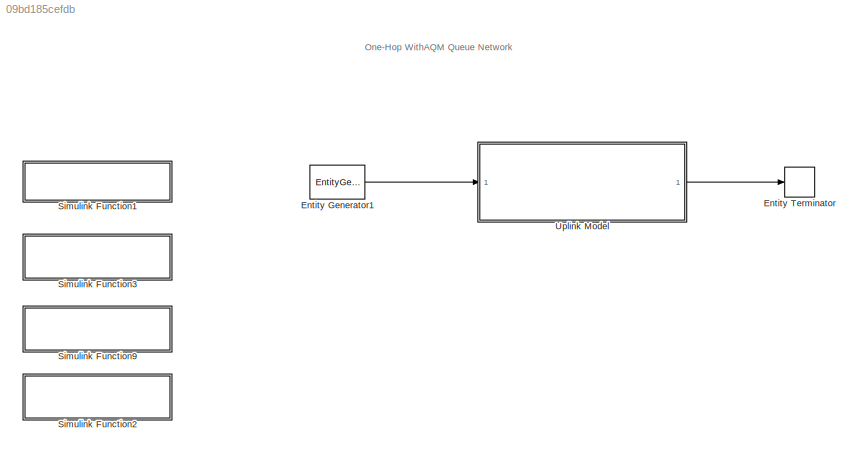
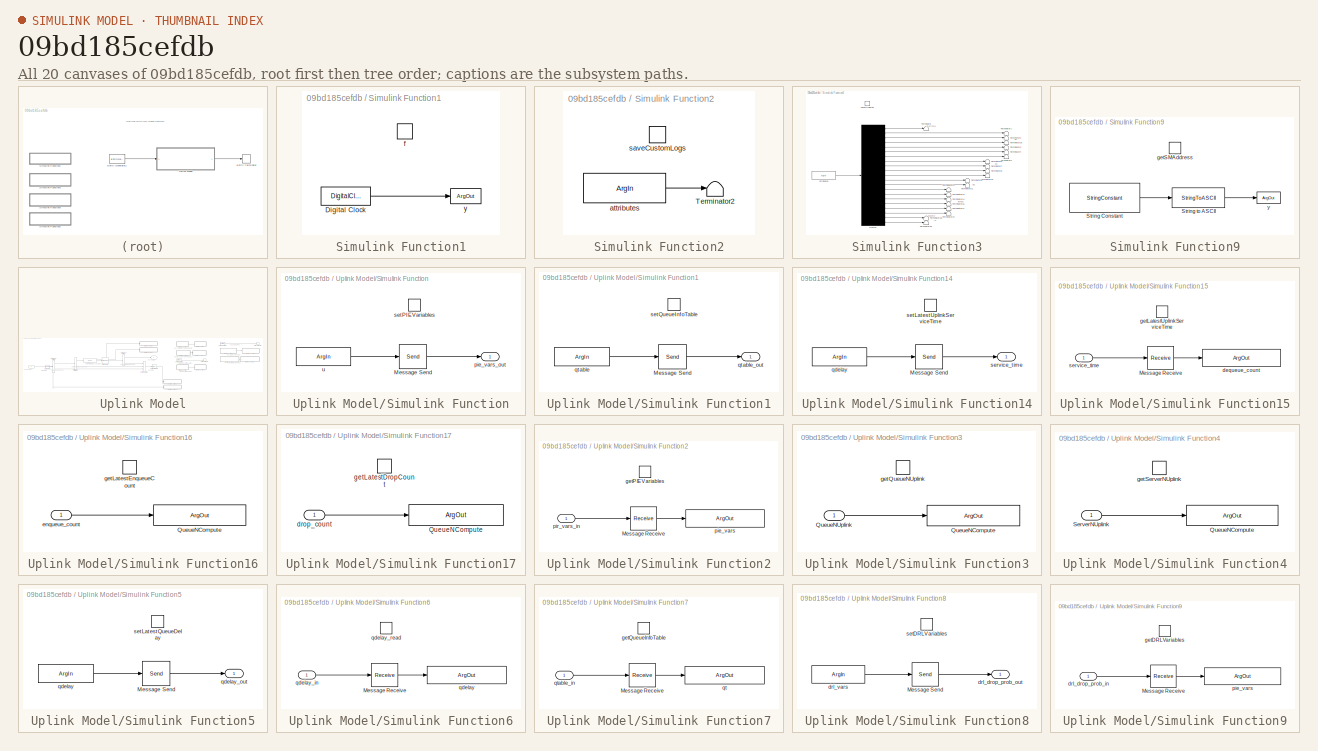
[diagram: thumbnail index - all 20 canvases of the model, root first then tree order]
MODEL slx_09bd185cefdb
KIND model
CONFIG AbsTol = auto
CONFIG EnableMultiTasking = on
CONFIG FixedStep = auto
CONFIG InitFcn = t = getCurrentTask();\nif ~isempty(t) \n    task_id = t.ID;\nelse\n    task_id = 1;\nend
CONFIG MaxStep = auto
CONFIG MinStep = auto
CONFIG RelTol = 1e-3
CONFIG SampleTimeConstraint = Unconstrained
CONFIG SolverName = VariableStepAuto
CONFIG StartTime = 0.0
CONFIG StopTime = 100
BLOCK [EntityGenerator] Entity Generator1
  AttributeInitialValue = inf|-1|-1|-1|-1|-1|-1|-1|-1|-1|-1|-1|-1|inf|inf|inf|inf|inf|inf|inf|1|0
  AttributeName = starttime|queuen_uplink_bu|servern_uplink_bu|queuen_compute_bu|servern_compute_bu|queuen_downlink_bu|servern_downlink_bu|queuen_compute_bc|servern_compute_bc|queuen_downlink_bc|servern_downlink_bc|queuen_downlink_bd|servern_downlink_bd|queuetime_uplink|servicetime_uplink|queuetime_compute|servicetime_compute|queuetime_downlink|servicetime_downlink|endtime|drop_switch_port|service_dt
  EntityType = Structured
  EntityTypeName = Entity
  GenerateAction = entity.starttime = getCurrentTime();\n\nentity.queuen_uplink_bu = getQueueNUplink();\nentity.servern_uplink_bu = getServerNUplink();
  IntergenerationTimeAction = dt = getArrivalTime(sim_vars(1),sim_vars(2),sim_vars(12));
  OutputPortMap = o3
  OutputPortMessageModes = m
  Ports = [0, 1]
  TimeSource = MATLAB action
BLOCK [EntityTerminator] Entity Terminator
  EntryAction = entity.endtime = getCurrentTime();\n\nsaveAttributes([entity.starttime;               ...\n                entity.queuen_uplink_bu;        ...\n                entity.servern_uplink_bu;       ...\n                entity.queuen_compute_bu;       ...\n                entity.servern_compute_bu;      ...\n                entity.queuen_downlink_bu;      ...\n                entity.servern_downlink_bu;     ...\n...<+707ch>
  InputPortMap = u0
  InputPortMessageModes = m
  Ports = [1]
BLOCK [SubSystem] Simulink Function1
  Ports = [0, 0, 0, 1]
  RequestExecContextInheritance = off
  TreatAsAtomicUnit = on
BLOCK [DigitalClock] Simulink Function1/Digital Clock
  SampleTime = -1
BLOCK [TriggerPort] Simulink Function1/f
  FunctionName = getCurrentTime
  IsSimulinkFunction = on
  Ports = []
  StatesWhenEnabling = held
  TriggerType = function-call
  VariantControl = (inherit)
BLOCK [ArgOut] Simulink Function1/y
  ArgumentName = y
  DisableCoverage = on
BLOCK [SubSystem] Simulink Function2
  Ports = [0, 0, 0, 1]
  RequestExecContextInheritance = off
  TreatAsAtomicUnit = on
BLOCK [Terminator] Simulink Function2/Terminator2
BLOCK [ArgIn] Simulink Function2/attributes
  ArgumentName = attributes
  DisableCoverage = on
  PortDimensions = 7
BLOCK [TriggerPort] Simulink Function2/saveCustomLogs
  FunctionName = saveCustomLogs
  IsSimulinkFunction = on
  Ports = []
  StatesWhenEnabling = held
  TriggerType = function-call
  VariantControl = (inherit)
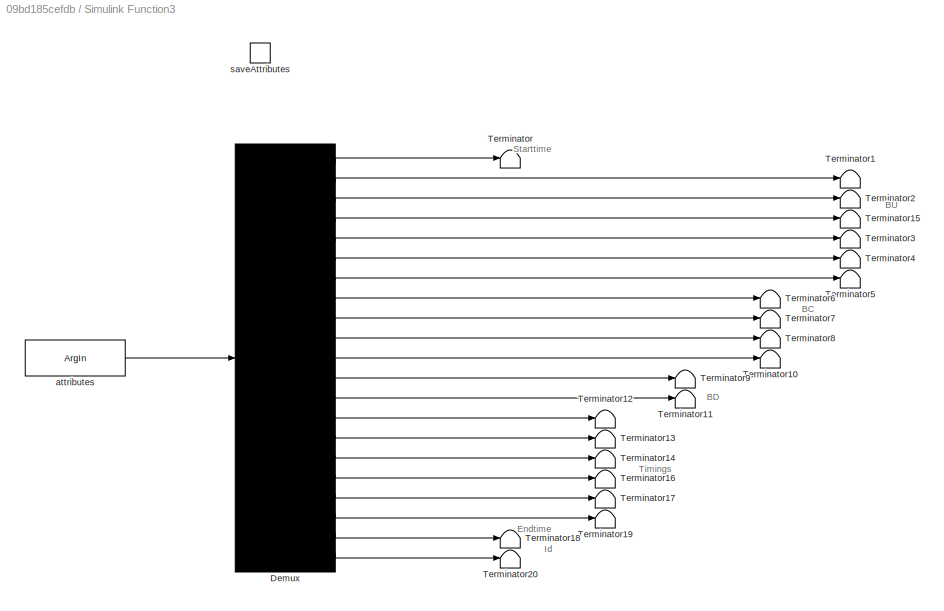
BLOCK [SubSystem] Simulink Function3
  Ports = [0, 0, 0, 1]
  RequestExecContextInheritance = off
  TreatAsAtomicUnit = on
BLOCK [Demux] Simulink Function3/Demux
  DisplayOption = none
  Outputs = 21
  Ports = [1, 21]
BLOCK [Terminator] Simulink Function3/Terminator
BLOCK [Terminator] Simulink Function3/Terminator1
BLOCK [Terminator] Simulink Function3/Terminator10
BLOCK [Terminator] Simulink Function3/Terminator11
BLOCK [Terminator] Simulink Function3/Terminator12
BLOCK [Terminator] Simulink Function3/Terminator13
BLOCK [Terminator] Simulink Function3/Terminator14
BLOCK [Terminator] Simulink Function3/Terminator15
BLOCK [Terminator] Simulink Function3/Terminator16
BLOCK [Terminator] Simulink Function3/Terminator17
BLOCK [Terminator] Simulink Function3/Terminator18
BLOCK [Terminator] Simulink Function3/Terminator19
BLOCK [Terminator] Simulink Function3/Terminator2
BLOCK [Terminator] Simulink Function3/Terminator20
BLOCK [Terminator] Simulink Function3/Terminator3
BLOCK [Terminator] Simulink Function3/Terminator4
BLOCK [Terminator] Simulink Function3/Terminator5
BLOCK [Terminator] Simulink Function3/Terminator6
BLOCK [Terminator] Simulink Function3/Terminator7
BLOCK [Terminator] Simulink Function3/Terminator8
BLOCK [Terminator] Simulink Function3/Terminator9
BLOCK [ArgIn] Simulink Function3/attributes
  ArgumentName = attributes
  DisableCoverage = on
  PortDimensions = 21
BLOCK [TriggerPort] Simulink Function3/saveAttributes
  FunctionName = saveAttributes
  IsSimulinkFunction = on
  Ports = []
  StatesWhenEnabling = held
  TriggerType = function-call
  VariantControl = (inherit)
BLOCK [SubSystem] Simulink Function9
  Ports = [0, 0, 0, 1]
  RequestExecContextInheritance = off
  TreatAsAtomicUnit = on
BLOCK [StringConstant] Simulink Function9/String Constant
  String = sm_address
BLOCK [StringToASCII] Simulink Function9/String to ASCII
  OutputVectorSize = 500
BLOCK [TriggerPort] Simulink Function9/getSMAddress
  FunctionName = getSMAddress
  IsSimulinkFunction = on
  Ports = []
  StatesWhenEnabling = held
  TriggerType = function-call
  VariantControl = (inherit)
BLOCK [ArgOut] Simulink Function9/y
  ArgumentName = y
  DisableCoverage = on
  OutDataTypeStr = uint8
  PortDimensions = 500
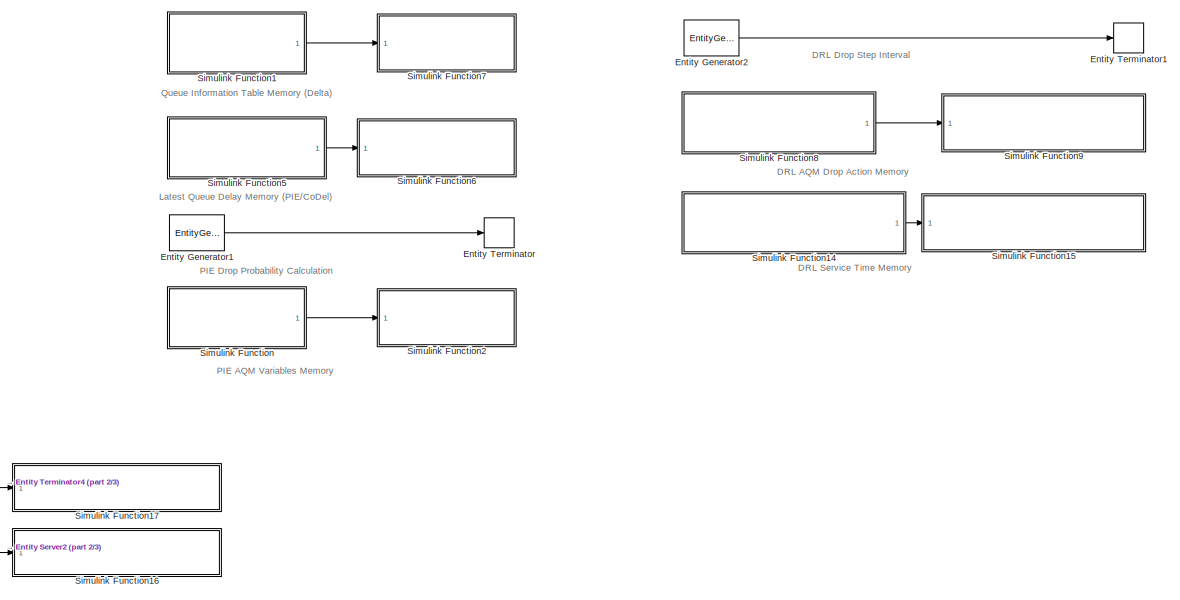
[diagram: Uplink Model - part 1/3, right side, full height]
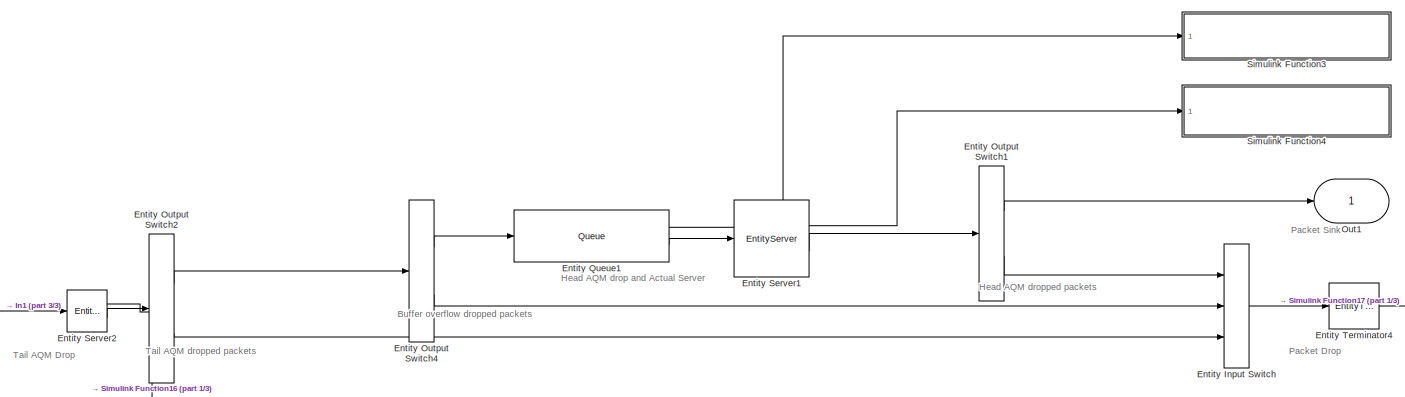
[diagram: Uplink Model - part 2/3, middle left region]
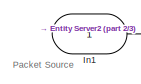
[diagram: Uplink Model - part 3/3, middle left region]
BLOCK [SubSystem] Uplink Model
  Ports = [1, 1]
  RequestExecContextInheritance = off
BLOCK [EntityGenerator] Uplink Model/Entity Generator1
  EntityType = Structured
  EntityTypeName = PIE_bell
  GenerateEntityAtSimulationStart = off
  IntergenerationTimeAction = if (aqm_params(1) == 1)\n    T_UPDATE = aqm_params(6);\n    dt = T_UPDATE;\nelse\n    dt = inf;
  OutputPortMap = o3
  OutputPortMessageModes = m
  Ports = [0, 1]
  TimeSource = MATLAB action
BLOCK [EntityGenerator] Uplink Model/Entity Generator2
  AttributeInitialValue = -1|0|0
  AttributeName = reward|delay_reward|enqueue_reward
  EntityType = Structured
  EntityTypeName = DRL_bell
  GenerateEntityAtSimulationStart = off
  IntergenerationTimeAction = if (aqm_params(1) == 4)\n    T_UPDATE = aqm_params(15);\n    dt = T_UPDATE;\nelse\n    dt = inf;
  OutputPortMap = o3
  OutputPortMessageModes = m
  Ports = [0, 1]
  TimeSource = MATLAB action
BLOCK [EntityInputSwitch] Uplink Model/Entity Input Switch
  InputPortMap = u1,u2,u3
  InputPortMessageModes = m,m,m
  NumberInputPorts = 3
  OutputPortMap = o0
  OutputPortMessageModes = m
  Ports = [3, 1]
BLOCK [EntityOutputSwitch] Uplink Model/Entity Output Switch1
  InputPortMap = u1
  InputPortMessageModes = m
  OutputPortMap = o0,o1
  OutputPortMessageModes = m,m
  Ports = [1, 2]
  SwitchAttributeName = drop_switch_port
  SwitchingCriterion = From attribute
BLOCK [EntityOutputSwitch] Uplink Model/Entity Output Switch2
  InputPortMap = u1
  InputPortMessageModes = m
  OutputPortMap = o0,o1
  OutputPortMessageModes = m,m
  Ports = [1, 2]
  SwitchAttributeName = drop_switch_port
  SwitchingCriterion = From attribute
BLOCK [EntityOutputSwitch] Uplink Model/Entity Output Switch4
  InputPortMap = u1
  InputPortMessageModes = m
  OutputPortMap = o0,o1
  OutputPortMessageModes = m,m
  Ports = [1, 2]
  SwitchAttributeName = drop_at_source
BLOCK [Queue] Uplink Model/Entity Queue1
  Capacity = sim_vars(9)
  EntryAction = %%%%%%%%%%%%%%%%%%%%%%%%%%%%%%%%%%%%%%%%%%%%%%%%%%%%%%%%\n%% Delta: Update Queue Information Table %%%%%%%%%%%%%%%\n\nif aqm_params(1) == 3\n\n    qtable = getQueueInfoTable();\n    QTABLE_SIZE = aqm_params(11);\n    TARGET_DELAY = aqm_params(12);\n    now = getCurrentTime();\n    nrow = sum(qtable(:,3)==1);\n    if nrow >= (QTABLE_SIZE-1)\n        error('Queue table is full')\n    end\n\n    % First, update th...<+488ch>
  InputPortMap = u0
  InputPortMessageModes = m
  NumberEntitiesInBlock = on
  OutputPortMap = o1,o5
  OutputPortMessageModes = n,m
  Ports = [1, 2]
BLOCK [EntityServer] Uplink Model/Entity Server1
  Capacity = 1
  EntryAction = %%%%%%%%%%%%%%%%%%%%%%%%%%%%%%%%%%%%%%%%%%%%%%%%%%%%%%%%%%%%%%\n%% Non-AQM Stuff %%%%%%%%%%%%%%%%%%%%%%%%%%%%%%%%%%%%%%%%%%%%%\n\n% update packet's queue timestamp\nentity.queuetime_uplink = getCurrentTime();\n% define the packet drop variable\ndrop_the_packet = 0;\n\n%%%%%%%%%%%%%%%%%%%%%%%%%%%%%%%%%%%%%%%%%%%%%%%%%%%%%%%%%%%%%%\n%% Delta-AQM: (1) Update Queue Table Latency Budgets %%%%%%%%%\nqt = zeros(aq...<+3132ch>
  InputPortMap = u2
  InputPortMessageModes = m
  NumberEntitiesInBlock = on
  OutputPortMap = o1,o9
  OutputPortMessageModes = n,m
  Ports = [1, 2]
  ServiceCompleteAction = %% update service time\n% if supposed to be dropped\nif (entity.drop_switch_port == 2)\n    entity.servicetime_uplink = inf;\nelse\n    entity.servicetime_uplink = getCurrentTime();\nend
  ServiceTimeAction = % if supposed to be dropped\nif (entity.drop_switch_port == 2) \n    dt = 0;\nelse\n    % entity.service_dt is set in event actions entry\n    dt = entity.service_dt;\nend
  ServiceTimeSource = MATLAB action
BLOCK [EntityServer] Uplink Model/Entity Server2
  Capacity = 1
  EntryAction = %%%%%%%%%%%%%%%%%%%%%%%%%%%%%%%%%%%%%%%%%%%%%%%%\n%% PIE AQM Dropping Process %%%%%%%%%%%%%%%%%%%%\n\nif aqm_params(1)==1 % if PIE is enabled\n    \n    % pie implementation\n    QDELAY_REF = aqm_params(4);\n    MEAN_PKTSIZE = aqm_params(5);\n\n    pie_vars = getPIEVariables();\n    drop_prob = pie_vars(1);\n    qdelay_old = pie_vars(2);\n\n    queue_length = getQueueNUplink();\n    server_length = getServerNUp...<+280ch>
  InputPortMap = u2
  InputPortMessageModes = m
  NumberEntitiesDeparted = on
  OutputPortMap = o0,o9
  OutputPortMessageModes = n,m
  Ports = [1, 2]
  ServiceTimeAction = dt = 0;
  ServiceTimeSource = MATLAB action
BLOCK [EntityTerminator] Uplink Model/Entity Terminator
  EntryAction = if (aqm_params(1) == 1)\n    \n    QDELAY_REF = aqm_params(4);\n    MEAN_PKTSIZE = aqm_params(5);\n    T_UPDATE = aqm_params(6);\n    ALPHA = aqm_params(7);\n    BETA = aqm_params(8);\n    \n    latest_queue_delay = getLatestQueueDelay();\n    \n    [drop_prob,qdelay_old] = updateDropProbPIEInterval(latest_queue_delay,ALPHA,BETA,QDELAY_REF);\n    setPIEVariables([drop_prob;qdelay_old]);\n    \nend
  InputPortMap = u0
  InputPortMessageModes = m
  Ports = [1]
BLOCK [EntityTerminator] Uplink Model/Entity Terminator1
  EntryAction = persistent enqueue_count;\npersistent drop_count;\npersistent queue_length;\n\nif (isempty(enqueue_count) || isempty(drop_count) || isempty(queue_length))\n    enqueue_count = getLatestEnqueueCount();\n    drop_count = getLatestDropCount();\n    queue_length = getQueueNUplink();\nend\n\nif (aqm_params(1) == 4)\n    \n    DELAY_REF = aqm_params(13);\n    DELTA = aqm_params(14);\n    T_INTERVAL = aqm_params(15);\n...<+1998ch>
  InputPortMap = u0
  InputPortMessageModes = m
  Ports = [1]
BLOCK [EntityTerminator] Uplink Model/Entity Terminator4
  EntryAction = saveAttributes([entity.starttime;               ...\n                entity.queuen_uplink_bu;        ...\n                entity.servern_uplink_bu;       ...\n                entity.queuen_compute_bu;       ...\n                entity.servern_compute_bu;      ...\n                entity.queuen_downlink_bu;      ...\n                entity.servern_downlink_bu;     ...\n                entity.queuen_comput...<+671ch>
  InputPortMap = u0
  InputPortMessageModes = m
  NumberEntitiesArrived = on
  OutputPortMap = o0
  Ports = [1, 1]
BLOCK [Inport] Uplink Model/In1
BLOCK [Outport] Uplink Model/Out1
BLOCK [SubSystem] Uplink Model/Simulink Function
  Ports = [0, 1, 0, 1]
  RequestExecContextInheritance = off
  TreatAsAtomicUnit = on
BLOCK [Send] Uplink Model/Simulink Function/Message Send
  InputPortMap = u1
  OutputPortMessageModes = m
  Ports = [1, 1]
BLOCK [Outport] Uplink Model/Simulink Function/pie_vars_out
  InitialOutput = [0,0]
  VectorParamsAs1DForOutWhenUnconnected = off
BLOCK [TriggerPort] Uplink Model/Simulink Function/setPIEVariables
  FunctionName = setPIEVariables
  FunctionVisibility = scoped
  IsSimulinkFunction = on
  Ports = []
  StatesWhenEnabling = held
  TriggerType = function-call
  VariantControl = (inherit)
BLOCK [ArgIn] Uplink Model/Simulink Function/u
  ArgumentName = pie_vars
  DisableCoverage = on
  PortDimensions = 2
BLOCK [SubSystem] Uplink Model/Simulink Function1
  Ports = [0, 1, 0, 1]
  RequestExecContextInheritance = off
  TreatAsAtomicUnit = on
BLOCK [Send] Uplink Model/Simulink Function1/Message Send
  InputPortMap = u1
  OutputPortMessageModes = m
  Ports = [1, 1]
BLOCK [ArgIn] Uplink Model/Simulink Function1/qtable
  ArgumentName = new_qt
  DisableCoverage = on
  PortDimensions = [aqm_params(11),3]
BLOCK [Outport] Uplink Model/Simulink Function1/qtable_out
  InitialOutput = zeros(aqm_params(11),3)
  VectorParamsAs1DForOutWhenUnconnected = off
BLOCK [TriggerPort] Uplink Model/Simulink Function1/setQueueInfoTable
  FunctionName = setQueueInfoTable
  FunctionVisibility = scoped
  IsSimulinkFunction = on
  Ports = []
  StatesWhenEnabling = held
  TriggerType = function-call
  VariantControl = (inherit)
BLOCK [SubSystem] Uplink Model/Simulink Function14
  Ports = [0, 1, 0, 1]
  RequestExecContextInheritance = off
  TreatAsAtomicUnit = on
BLOCK [Send] Uplink Model/Simulink Function14/Message Send
  InputPortMap = u1
  OutputPortMessageModes = m
  Ports = [1, 1]
BLOCK [ArgIn] Uplink Model/Simulink Function14/qdelay
  ArgumentName = service_time
  DisableCoverage = on
BLOCK [Outport] Uplink Model/Simulink Function14/service_time
  InitialOutput = [0]
  VectorParamsAs1DForOutWhenUnconnected = off
BLOCK [TriggerPort] Uplink Model/Simulink Function14/setLatestUplinkServiceTime
  FunctionName = setLatestUplinkServiceTime
  FunctionVisibility = scoped
  IsSimulinkFunction = on
  Ports = []
  StatesWhenEnabling = held
  TriggerType = function-call
  VariantControl = (inherit)
BLOCK [SubSystem] Uplink Model/Simulink Function15
  Ports = [1, 0, 0, 1]
  RequestExecContextInheritance = off
  TreatAsAtomicUnit = on
BLOCK [Receive] Uplink Model/Simulink Function15/Message Receive
  InitialValue = [0]
  InputPortMap = u0
  InputPortMessageModes = m
  OutputPortMap = o1
  Ports = [1, 1]
  QueueLength = 1
  QueueOverwriting = on
BLOCK [ArgOut] Uplink Model/Simulink Function15/dequeue_count
  ArgumentName = service_time
  DisableCoverage = on
BLOCK [TriggerPort] Uplink Model/Simulink Function15/getLatestUplinkServiceTime
  FunctionName = getLatestUplinkServiceTime
  FunctionVisibility = scoped
  IsSimulinkFunction = on
  Ports = []
  StatesWhenEnabling = held
  TriggerType = function-call
  VariantControl = (inherit)
BLOCK [Inport] Uplink Model/Simulink Function15/service_time
BLOCK [SubSystem] Uplink Model/Simulink Function16
  Ports = [1, 0, 0, 1]
  RequestExecContextInheritance = off
  TreatAsAtomicUnit = on
BLOCK [ArgOut] Uplink Model/Simulink Function16/QueueNCompute
  ArgumentName = enqueue_count
  DisableCoverage = on
BLOCK [Inport] Uplink Model/Simulink Function16/enqueue_count
BLOCK [TriggerPort] Uplink Model/Simulink Function16/getLatestEnqueueCount
  FunctionName = getLatestEnqueueCount
  IsSimulinkFunction = on
  Ports = []
  StatesWhenEnabling = held
  TriggerType = function-call
  VariantControl = (inherit)
BLOCK [SubSystem] Uplink Model/Simulink Function17
  Ports = [1, 0, 0, 1]
  RequestExecContextInheritance = off
  TreatAsAtomicUnit = on
BLOCK [ArgOut] Uplink Model/Simulink Function17/QueueNCompute
  ArgumentName = drop_count
  DisableCoverage = on
BLOCK [Inport] Uplink Model/Simulink Function17/drop_count
BLOCK [TriggerPort] Uplink Model/Simulink Function17/getLatestDropCount
  FunctionName = getLatestDropCount
  IsSimulinkFunction = on
  Ports = []
  StatesWhenEnabling = held
  TriggerType = function-call
  VariantControl = (inherit)
BLOCK [SubSystem] Uplink Model/Simulink Function2
  Ports = [1, 0, 0, 1]
  RequestExecContextInheritance = off
  TreatAsAtomicUnit = on
BLOCK [Receive] Uplink Model/Simulink Function2/Message Receive
  InitialValue = [0,0]
  InputPortMap = u0
  InputPortMessageModes = m
  OutputPortMap = o1
  Ports = [1, 1]
  QueueLength = 1
  QueueOverwriting = on
BLOCK [TriggerPort] Uplink Model/Simulink Function2/getPIEVariables
  FunctionName = getPIEVariables
  FunctionVisibility = scoped
  IsSimulinkFunction = on
  Ports = []
  StatesWhenEnabling = held
  TriggerType = function-call
  VariantControl = (inherit)
BLOCK [ArgOut] Uplink Model/Simulink Function2/pie_vars
  ArgumentName = pie_vars
  DisableCoverage = on
  PortDimensions = 2
BLOCK [Inport] Uplink Model/Simulink Function2/pir_vars_in
BLOCK [SubSystem] Uplink Model/Simulink Function3
  Ports = [1, 0, 0, 1]
  RequestExecContextInheritance = off
  TreatAsAtomicUnit = on
BLOCK [ArgOut] Uplink Model/Simulink Function3/QueueNCompute
  ArgumentName = QueueNUplink
  DisableCoverage = on
BLOCK [Inport] Uplink Model/Simulink Function3/QueueNUplink
BLOCK [TriggerPort] Uplink Model/Simulink Function3/getQueueNUplink
  FunctionName = getQueueNUplink
  IsSimulinkFunction = on
  Ports = []
  StatesWhenEnabling = held
  TriggerType = function-call
  VariantControl = (inherit)
BLOCK [SubSystem] Uplink Model/Simulink Function4
  Ports = [1, 0, 0, 1]
  RequestExecContextInheritance = off
  TreatAsAtomicUnit = on
BLOCK [ArgOut] Uplink Model/Simulink Function4/QueueNCompute
  ArgumentName = ServerNUplink
  DisableCoverage = on
BLOCK [Inport] Uplink Model/Simulink Function4/ServerNUplink
BLOCK [TriggerPort] Uplink Model/Simulink Function4/getServerNUplink
  FunctionName = getServerNUplink
  IsSimulinkFunction = on
  Ports = []
  StatesWhenEnabling = held
  TriggerType = function-call
  VariantControl = (inherit)
BLOCK [SubSystem] Uplink Model/Simulink Function5
  Ports = [0, 1, 0, 1]
  RequestExecContextInheritance = off
  TreatAsAtomicUnit = on
BLOCK [Send] Uplink Model/Simulink Function5/Message Send
  InputPortMap = u1
  OutputPortMessageModes = m
  Ports = [1, 1]
BLOCK [ArgIn] Uplink Model/Simulink Function5/qdelay
  ArgumentName = qdelay
  DisableCoverage = on
BLOCK [Outport] Uplink Model/Simulink Function5/qdelay_out
  InitialOutput = [0]
  VectorParamsAs1DForOutWhenUnconnected = off
BLOCK [TriggerPort] Uplink Model/Simulink Function5/setLatestQueueDelay
  FunctionName = setLatestQueueDelay
  FunctionVisibility = scoped
  IsSimulinkFunction = on
  Ports = []
  StatesWhenEnabling = held
  TriggerType = function-call
  VariantControl = (inherit)
BLOCK [SubSystem] Uplink Model/Simulink Function6
  Ports = [1, 0, 0, 1]
  RequestExecContextInheritance = off
  TreatAsAtomicUnit = on
BLOCK [Receive] Uplink Model/Simulink Function6/Message Receive
  InitialValue = [0]
  InputPortMap = u0
  InputPortMessageModes = m
  OutputPortMap = o1
  Ports = [1, 1]
  QueueLength = 1
  QueueOverwriting = on
BLOCK [ArgOut] Uplink Model/Simulink Function6/qdelay
  ArgumentName = qdelay
  DisableCoverage = on
BLOCK [Inport] Uplink Model/Simulink Function6/qdelay_in
BLOCK [TriggerPort] Uplink Model/Simulink Function6/qdelay_read
  FunctionName = getLatestQueueDelay
  FunctionVisibility = scoped
  IsSimulinkFunction = on
  Ports = []
  StatesWhenEnabling = held
  TriggerType = function-call
  VariantControl = (inherit)
BLOCK [SubSystem] Uplink Model/Simulink Function7
  Ports = [1, 0, 0, 1]
  RequestExecContextInheritance = off
  TreatAsAtomicUnit = on
BLOCK [Receive] Uplink Model/Simulink Function7/Message Receive
  InitialValue = zeros(aqm_params(11),3)
  InputPortMap = u0
  InputPortMessageModes = m
  OutputPortMap = o1
  Ports = [1, 1]
  QueueLength = 1
  QueueOverwriting = on
BLOCK [TriggerPort] Uplink Model/Simulink Function7/getQueueInfoTable
  FunctionName = getQueueInfoTable
  FunctionVisibility = scoped
  IsSimulinkFunction = on
  Ports = []
  StatesWhenEnabling = held
  TriggerType = function-call
  VariantControl = (inherit)
BLOCK [ArgOut] Uplink Model/Simulink Function7/qt
  ArgumentName = qt
  DisableCoverage = on
  PortDimensions = [aqm_params(11),3]
BLOCK [Inport] Uplink Model/Simulink Function7/qtable_in
BLOCK [SubSystem] Uplink Model/Simulink Function8
  Ports = [0, 1, 0, 1]
  RequestExecContextInheritance = off
  TreatAsAtomicUnit = on
BLOCK [Send] Uplink Model/Simulink Function8/Message Send
  InputPortMap = u1
  OutputPortMessageModes = m
  Ports = [1, 1]
BLOCK [Outport] Uplink Model/Simulink Function8/drl_drop_prob_out
  InitialOutput = 0
  VectorParamsAs1DForOutWhenUnconnected = off
BLOCK [ArgIn] Uplink Model/Simulink Function8/drl_vars
  ArgumentName = drl_drop_prob
  DisableCoverage = on
BLOCK [TriggerPort] Uplink Model/Simulink Function8/setDRLVariables
  FunctionName = setDRLDropProb
  FunctionVisibility = scoped
  IsSimulinkFunction = on
  Ports = []
  StatesWhenEnabling = held
  TriggerType = function-call
  VariantControl = (inherit)
BLOCK [SubSystem] Uplink Model/Simulink Function9
  Ports = [1, 0, 0, 1]
  RequestExecContextInheritance = off
  TreatAsAtomicUnit = on
BLOCK [Receive] Uplink Model/Simulink Function9/Message Receive
  InitialValue = 0
  InputPortMap = u0
  InputPortMessageModes = m
  OutputPortMap = o1
  Ports = [1, 1]
  QueueLength = 1
  QueueOverwriting = on
BLOCK [Inport] Uplink Model/Simulink Function9/drl_drop_prob_in
BLOCK [TriggerPort] Uplink Model/Simulink Function9/getDRLVariables
  FunctionName = getDRLDropProb
  FunctionVisibility = scoped
  IsSimulinkFunction = on
  Ports = []
  StatesWhenEnabling = held
  TriggerType = function-call
  VariantControl = (inherit)
BLOCK [ArgOut] Uplink Model/Simulink Function9/pie_vars
  ArgumentName = drl_drop_prob
  DisableCoverage = on
ANNOTATION (root): One-Hop WithAQM Queue Network
ANNOTATION Simulink Function3: BC
ANNOTATION Simulink Function3: BD
ANNOTATION Simulink Function3: BU
ANNOTATION Simulink Function3: Endtime
ANNOTATION Simulink Function3: Id
ANNOTATION Simulink Function3: Starttime
ANNOTATION Simulink Function3: Timings
ANNOTATION Uplink Model: Buffer overflow dropped packets
ANNOTATION Uplink Model: Head AQM dropped packets
ANNOTATION Uplink Model: Tail AQM dropped packets
ANNOTATION Uplink Model: Tail AQM Drop
ANNOTATION Uplink Model: Packet Drop
ANNOTATION Uplink Model: Packet Sink
ANNOTATION Uplink Model: Packet Source
ANNOTATION Uplink Model: Head AQM drop and Actual Server
ANNOTATION Uplink Model: DRL AQM Drop Action Memory
ANNOTATION Uplink Model: DRL Drop Step Interval
ANNOTATION Uplink Model: DRL Service Time Memory
ANNOTATION Uplink Model: Latest Queue Delay Memory (PIE/CoDel)
ANNOTATION Uplink Model: PIE AQM Variables Memory
ANNOTATION Uplink Model: PIE Drop Probability Calculation
ANNOTATION Uplink Model: Queue Information Table Memory (Delta)
LINE Entity Generator1:1 -> Uplink Model:1
LINE Simulink Function1/Digital Clock:1 -> Simulink Function1/y:1
LINE Simulink Function2/attributes:1 -> Simulink Function2/Terminator2:1
LINE Simulink Function3/Demux:1 -> Simulink Function3/Terminator:1
LINE Simulink Function3/Demux:10 -> Simulink Function3/Terminator8:1
LINE Simulink Function3/Demux:11 -> Simulink Function3/Terminator10:1
LINE Simulink Function3/Demux:12 -> Simulink Function3/Terminator9:1
LINE Simulink Function3/Demux:13 -> Simulink Function3/Terminator11:1
LINE Simulink Function3/Demux:14 -> Simulink Function3/Terminator12:1
LINE Simulink Function3/Demux:15 -> Simulink Function3/Terminator13:1
LINE Simulink Function3/Demux:16 -> Simulink Function3/Terminator14:1
LINE Simulink Function3/Demux:17 -> Simulink Function3/Terminator16:1
LINE Simulink Function3/Demux:18 -> Simulink Function3/Terminator17:1
LINE Simulink Function3/Demux:19 -> Simulink Function3/Terminator19:1
LINE Simulink Function3/Demux:2 -> Simulink Function3/Terminator1:1
LINE Simulink Function3/Demux:20 -> Simulink Function3/Terminator18:1
LINE Simulink Function3/Demux:21 -> Simulink Function3/Terminator20:1
LINE Simulink Function3/Demux:3 -> Simulink Function3/Terminator2:1
LINE Simulink Function3/Demux:4 -> Simulink Function3/Terminator15:1
LINE Simulink Function3/Demux:5 -> Simulink Function3/Terminator3:1
LINE Simulink Function3/Demux:6 -> Simulink Function3/Terminator4:1
LINE Simulink Function3/Demux:7 -> Simulink Function3/Terminator5:1
LINE Simulink Function3/Demux:8 -> Simulink Function3/Terminator6:1
LINE Simulink Function3/Demux:9 -> Simulink Function3/Terminator7:1
LINE Simulink Function3/attributes:1 -> Simulink Function3/Demux:1
LINE Simulink Function9/String Constant:1 -> Simulink Function9/String to ASCII:1
LINE Simulink Function9/String to ASCII:1 -> Simulink Function9/y:1
LINE Uplink Model/Entity Generator1:1 -> Uplink Model/Entity Terminator:1
LINE Uplink Model/Entity Generator2:1 -> Uplink Model/Entity Terminator1:1
LINE Uplink Model/Entity Input Switch:1 -> Uplink Model/Entity Terminator4:1
LINE Uplink Model/Entity Output Switch1:1 -> Uplink Model/Out1:1
LINE Uplink Model/Entity Output Switch1:2 -> Uplink Model/Entity Input Switch:1
LINE Uplink Model/Entity Output Switch2:1 -> Uplink Model/Entity Output Switch4:1
LINE Uplink Model/Entity Output Switch2:2 -> Uplink Model/Entity Input Switch:3
LINE Uplink Model/Entity Output Switch4:1 -> Uplink Model/Entity Queue1:1
LINE Uplink Model/Entity Output Switch4:2 -> Uplink Model/Entity Input Switch:2
LINE Uplink Model/Entity Queue1:1 -> Uplink Model/Simulink Function3:1
LINE Uplink Model/Entity Queue1:2 -> Uplink Model/Entity Server1:1
LINE Uplink Model/Entity Server1:1 -> Uplink Model/Simulink Function4:1
LINE Uplink Model/Entity Server1:2 -> Uplink Model/Entity Output Switch1:1
LINE Uplink Model/Entity Server2:1 -> Uplink Model/Simulink Function16:1
LINE Uplink Model/Entity Server2:2 -> Uplink Model/Entity Output Switch2:1
LINE Uplink Model/Entity Terminator4:1 -> Uplink Model/Simulink Function17:1
LINE Uplink Model/In1:1 -> Uplink Model/Entity Server2:1
LINE Uplink Model/Simulink Function/Message Send:1 -> Uplink Model/Simulink Function/pie_vars_out:1
LINE Uplink Model/Simulink Function/u:1 -> Uplink Model/Simulink Function/Message Send:1
LINE Uplink Model/Simulink Function1/Message Send:1 -> Uplink Model/Simulink Function1/qtable_out:1
LINE Uplink Model/Simulink Function1/qtable:1 -> Uplink Model/Simulink Function1/Message Send:1
LINE Uplink Model/Simulink Function14/Message Send:1 -> Uplink Model/Simulink Function14/service_time:1
LINE Uplink Model/Simulink Function14/qdelay:1 -> Uplink Model/Simulink Function14/Message Send:1
LINE Uplink Model/Simulink Function14:1 -> Uplink Model/Simulink Function15:1
LINE Uplink Model/Simulink Function15/Message Receive:1 -> Uplink Model/Simulink Function15/dequeue_count:1
LINE Uplink Model/Simulink Function15/service_time:1 -> Uplink Model/Simulink Function15/Message Receive:1
LINE Uplink Model/Simulink Function16/enqueue_count:1 -> Uplink Model/Simulink Function16/QueueNCompute:1
LINE Uplink Model/Simulink Function17/drop_count:1 -> Uplink Model/Simulink Function17/QueueNCompute:1
LINE Uplink Model/Simulink Function1:1 -> Uplink Model/Simulink Function7:1
LINE Uplink Model/Simulink Function2/Message Receive:1 -> Uplink Model/Simulink Function2/pie_vars:1
LINE Uplink Model/Simulink Function2/pir_vars_in:1 -> Uplink Model/Simulink Function2/Message Receive:1
LINE Uplink Model/Simulink Function3/QueueNUplink:1 -> Uplink Model/Simulink Function3/QueueNCompute:1
LINE Uplink Model/Simulink Function4/ServerNUplink:1 -> Uplink Model/Simulink Function4/QueueNCompute:1
LINE Uplink Model/Simulink Function5/Message Send:1 -> Uplink Model/Simulink Function5/qdelay_out:1
LINE Uplink Model/Simulink Function5/qdelay:1 -> Uplink Model/Simulink Function5/Message Send:1
LINE Uplink Model/Simulink Function5:1 -> Uplink Model/Simulink Function6:1
LINE Uplink Model/Simulink Function6/Message Receive:1 -> Uplink Model/Simulink Function6/qdelay:1
LINE Uplink Model/Simulink Function6/qdelay_in:1 -> Uplink Model/Simulink Function6/Message Receive:1
LINE Uplink Model/Simulink Function7/Message Receive:1 -> Uplink Model/Simulink Function7/qt:1
LINE Uplink Model/Simulink Function7/qtable_in:1 -> Uplink Model/Simulink Function7/Message Receive:1
LINE Uplink Model/Simulink Function8/Message Send:1 -> Uplink Model/Simulink Function8/drl_drop_prob_out:1
LINE Uplink Model/Simulink Function8/drl_vars:1 -> Uplink Model/Simulink Function8/Message Send:1
LINE Uplink Model/Simulink Function8:1 -> Uplink Model/Simulink Function9:1
LINE Uplink Model/Simulink Function9/Message Receive:1 -> Uplink Model/Simulink Function9/pie_vars:1
LINE Uplink Model/Simulink Function9/drl_drop_prob_in:1 -> Uplink Model/Simulink Function9/Message Receive:1
LINE Uplink Model/Simulink Function:1 -> Uplink Model/Simulink Function2:1
LINE Uplink Model:1 -> Entity Terminator:1
